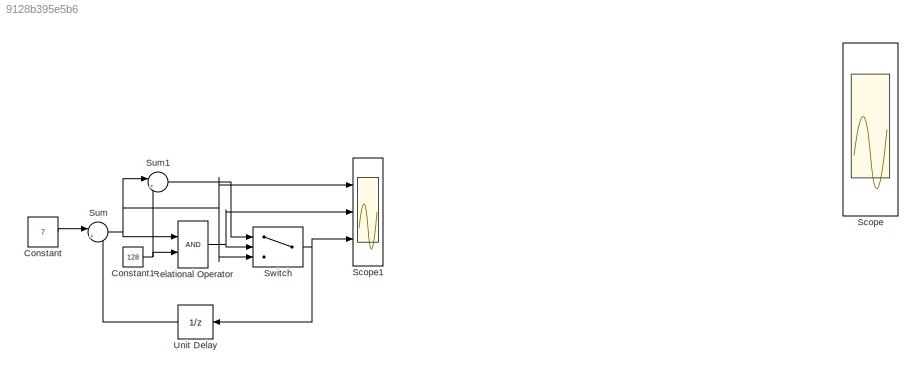
MODEL slx_9128b395e5b6
KIND model
BLOCK [Constant] Constant
  SampleTime = 1
  Value = 7
BLOCK [Constant] Constant1
  SampleTime = 1
  Value = 128
BLOCK [RelationalOperator] Relational Operator
  InputSameDT = off
  OutDataTypeStr = boolean
  Ports = [2, 1]
  SampleTime = 1
BLOCK [Scope] Scope
  DataFormat = StructureWithTime
  Floating = off
  MaxDataPoints = 20000
  NumInputPorts = 4
  Ports = [4]
  SampleTime = 0
  ShowLegends = off
  TimeRange = 0.02
  YMax = 0.90000003~2~0.8~1
  YMin = 0.89999997~0.8~-0.2~-1
BLOCK [Scope] Scope1
  DataFormat = StructureWithTime
  Floating = off
  LimitDataPoints = off
  NumInputPorts = 3
  Ports = [3]
  SampleTime = 0
  SaveName = ScopeData1
  ShowLegends = off
  YMax = 5~5~5
  YMin = -5~-5~-5
BLOCK [Sum] Sum
  IconShape = round
  InputSameDT = off
  Inputs = |++
  OutDataTypeStr = Inherit: Inherit via internal rule
  Ports = [2, 1]
  SampleTime = 1
  SaturateOnIntegerOverflow = off
BLOCK [Sum] Sum1
  IconShape = round
  InputSameDT = off
  Inputs = |+-
  OutDataTypeStr = Inherit: Inherit via internal rule
  Ports = [2, 1]
  SampleTime = 1
  SaturateOnIntegerOverflow = off
BLOCK [Switch] Switch
  Criteria = u2 > Threshold
  InputSameDT = off
  SampleTime = 1
  SaturateOnIntegerOverflow = off
BLOCK [UnitDelay] Unit Delay
  InputProcessing = Elements as channels (sample based)
NET Constant1:1 -> Relational Operator:2, Sum1:2
LINE Constant:1 -> Sum:1
NET Relational Operator:1 -> Scope1:2, Switch:2
LINE Sum1:1 -> Switch:1
NET Sum:1 -> Relational Operator:1, Scope1:1, Sum1:1, Switch:3
NET Switch:1 -> Scope1:3, Unit Delay:1
LINE Unit Delay:1 -> Sum:2
note: NET lines group one-source signal fan-out (src -> all destinations, sorted); 1:1 wires keep LINE
